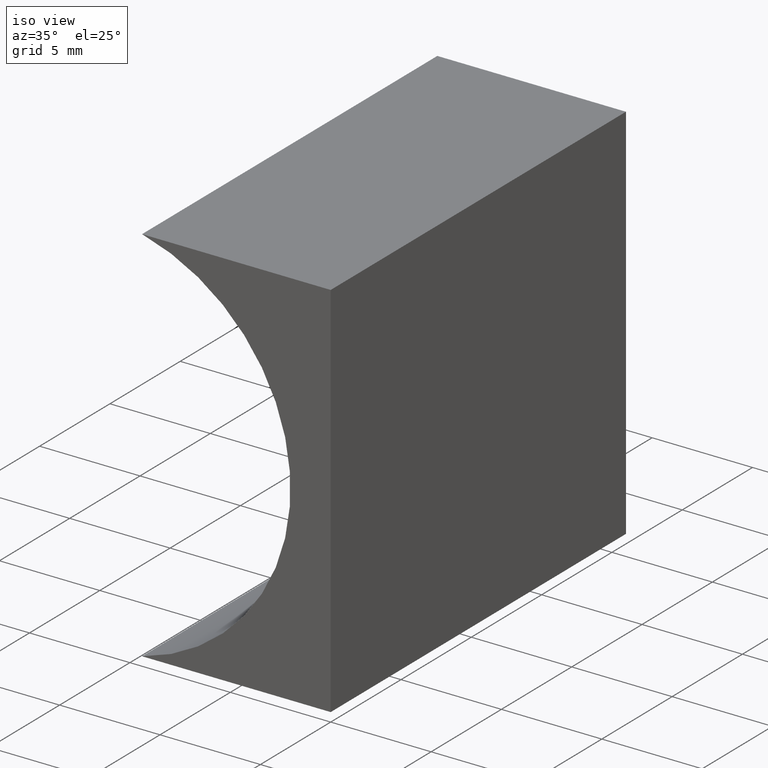
[diagram: clean part render]
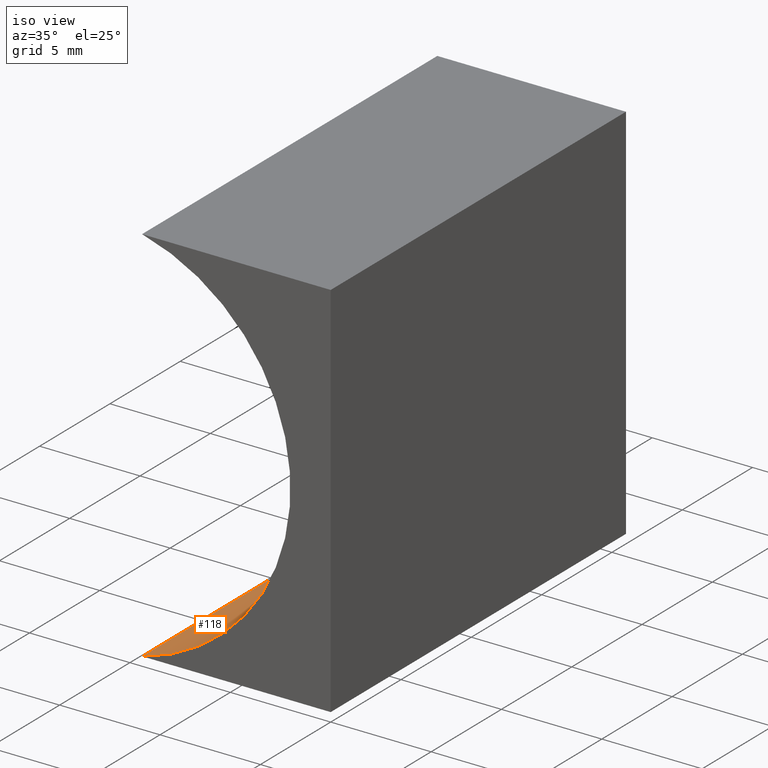
[diagram: same view with one face highlighted and labeled with its STEP entity id]
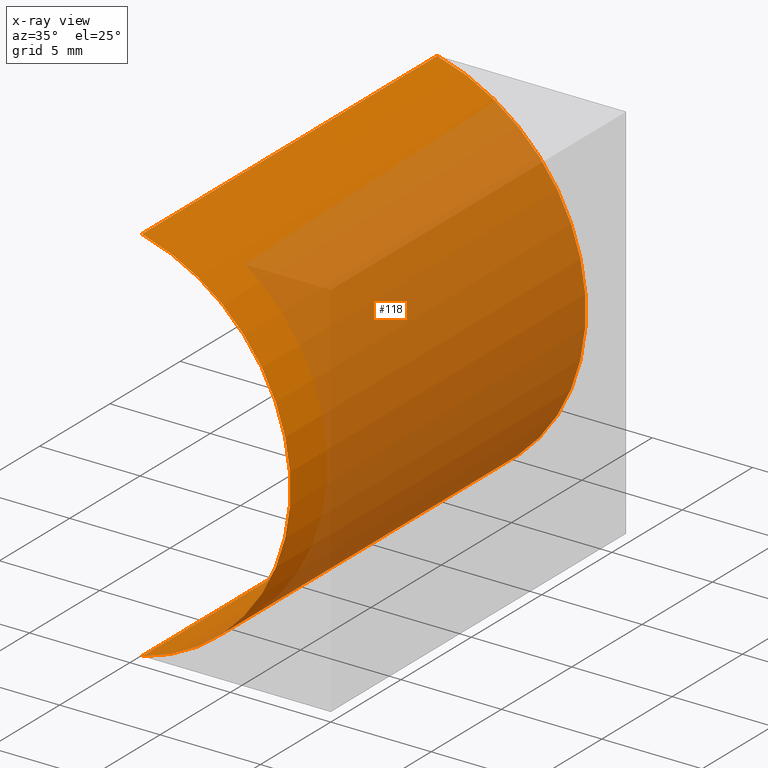
[diagram: x-ray of the same camera — body ghosted, the highlighted face saturated]
A machine part, iso view. The second image highlights one B-rep face of the part: STEP entity #118.
The next image is the same camera in x-ray: the body ghosted, the highlighted face saturated — about 70% of this face is hidden behind the body in this view.
In plain terms, the highlighted cylindrical surface (partial cylindrical patch) has radius 9.8 mm, axis along (-0, -1, -0).
Its self-contained STEP definition (entity closure, byte-faithful):
#1 = LINE ( 'NONE', #73, #2 ) ;
#2 = VECTOR ( 'NONE', #28, 1000.000000000000000 ) ;
#9 = DIRECTION ( 'NONE',  ( -0.0000000000000000000, -1.000000000000000000, -0.0000000000000000000 ) ) ;
#12 = ORIENTED_EDGE ( 'NONE', *, *, #199, .F. ) ;
#13 = CARTESIAN_POINT ( 'NONE',  ( -11.79999999999999900, 21.00000000000000000, 9.500000000000003600 ) ) ;
#18 = EDGE_CURVE ( 'NONE', #123, #200, #1, .T. ) ;
#24 = DIRECTION ( 'NONE',  ( -0.0000000000000000000, -1.000000000000000000, -0.0000000000000000000 ) ) ;
#28 = DIRECTION ( 'NONE',  ( -0.0000000000000000000, -1.000000000000000000, -0.0000000000000000000 ) ) ;
#52 = DIRECTION ( 'NONE',  ( 0.0000000000000000000, 0.0000000000000000000, 1.000000000000000000 ) ) ;
#54 = CARTESIAN_POINT ( 'NONE',  ( -9.393758116896808700, 0.0000000000000000000, 1.734723475976807100E-015 ) ) ;
#58 = VERTEX_POINT ( 'NONE', #198 ) ;
#60 = EDGE_CURVE ( 'NONE', #63, #200, #70, .T. ) ;
#61 = DIRECTION ( 'NONE',  ( -0.0000000000000000000, -1.000000000000000000, -0.0000000000000000000 ) ) ;
#63 = VERTEX_POINT ( 'NONE', #54 ) ;
#67 = ORIENTED_EDGE ( 'NONE', *, *, #18, .F. ) ;
#68 = AXIS2_PLACEMENT_3D ( 'NONE', #13, #61, #52 ) ;
#70 = CIRCLE ( 'NONE', #138, 9.800000000000000700 ) ;
#73 = CARTESIAN_POINT ( 'NONE',  ( -9.393758116896805200, 21.00000000000000000, 19.00000000000000400 ) ) ;
#86 = CARTESIAN_POINT ( 'NONE',  ( -9.393758116896805200, 0.0000000000000000000, 19.00000000000000400 ) ) ;
#92 = FACE_OUTER_BOUND ( 'NONE', #169, .T. ) ;
#94 = ORIENTED_EDGE ( 'NONE', *, *, #60, .T. ) ;
#103 = VECTOR ( 'NONE', #135, 1000.000000000000000 ) ;
#106 = LINE ( 'NONE', #201, #103 ) ;
#107 = CARTESIAN_POINT ( 'NONE',  ( -9.393758116896805200, 21.00000000000000000, 19.00000000000000400 ) ) ;
#114 = CYLINDRICAL_SURFACE ( 'NONE', #152, 9.800000000000000700 ) ;
#118 = ADVANCED_FACE ( 'NONE', ( #92 ), #114, .F. ) ;
#123 = VERTEX_POINT ( 'NONE', #107 ) ;
#135 = DIRECTION ( 'NONE',  ( -0.0000000000000000000, -1.000000000000000000, -0.0000000000000000000 ) ) ;
#138 = AXIS2_PLACEMENT_3D ( 'NONE', #144, #24, #184 ) ;
#143 = EDGE_CURVE ( 'NONE', #58, #63, #106, .T. ) ;
#144 = CARTESIAN_POINT ( 'NONE',  ( -11.79999999999999900, 0.0000000000000000000, 9.500000000000003600 ) ) ;
#152 = AXIS2_PLACEMENT_3D ( 'NONE', #195, #9, #161 ) ;
#161 = DIRECTION ( 'NONE',  ( 0.0000000000000000000, 0.0000000000000000000, -1.000000000000000000 ) ) ;
#169 = EDGE_LOOP ( 'NONE', ( #94, #67, #12, #187 ) ) ;
#184 = DIRECTION ( 'NONE',  ( 0.0000000000000000000, 0.0000000000000000000, 1.000000000000000000 ) ) ;
#187 = ORIENTED_EDGE ( 'NONE', *, *, #143, .T. ) ;
#189 = CIRCLE ( 'NONE', #68, 9.800000000000000700 ) ;
#195 = CARTESIAN_POINT ( 'NONE',  ( -11.79999999999999900, 21.00000000000000000, 9.500000000000003600 ) ) ;
#198 = CARTESIAN_POINT ( 'NONE',  ( -9.393758116896808700, 21.00000000000000000, 1.734723475976807100E-015 ) ) ;
#199 = EDGE_CURVE ( 'NONE', #58, #123, #189, .T. ) ;
#200 = VERTEX_POINT ( 'NONE', #86 ) ;
#201 = CARTESIAN_POINT ( 'NONE',  ( -9.393758116896808700, 21.00000000000000000, 1.734723475976807100E-015 ) ) ;